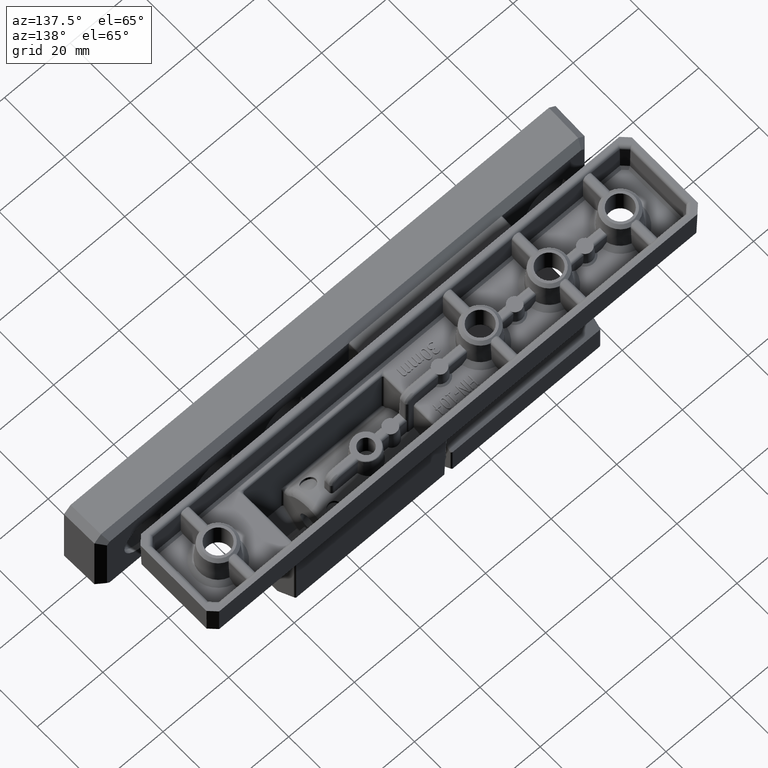
[diagram: clean part render]
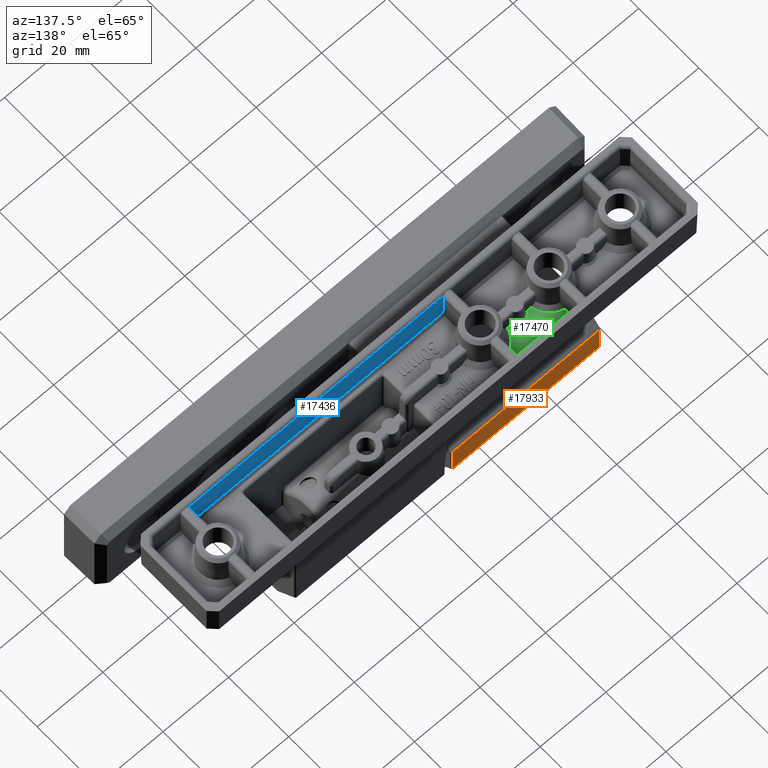
[diagram: same view with three faces highlighted in distinct colors, each labeled with its STEP entity id]
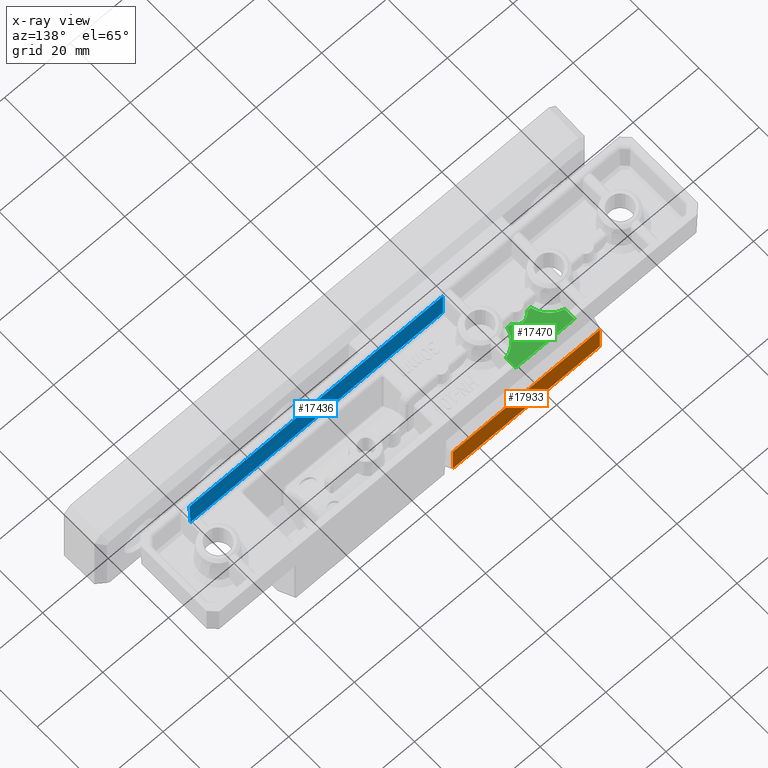
[diagram: x-ray of the same camera — body ghosted, the three highlighted faces saturated]
A machine part, auxiliary view with three faces highlighted in distinct colors.
The next image is the same camera in x-ray (body ghosted, the three faces saturated) — at least one of them is partly hidden behind the body in this view.
Their STEP definitions:

[orange] entity #17933 — the highlighted planar face has unit normal (0, 1, -0).
#526=ELLIPSE('',#19028,0.707160639333755,0.5);
#527=ELLIPSE('',#19029,0.707160639333737,0.5);
#528=ELLIPSE('',#19030,0.707160639333737,0.5);
#529=ELLIPSE('',#19031,0.707160639333755,0.5);
#1750=LINE('',#31753,#3148);
#1751=LINE('',#31757,#3149);
#1752=LINE('',#31761,#3150);
#1753=LINE('',#31764,#3151);
#3148=VECTOR('',#22294,8.79998151968334);
#3149=VECTOR('',#22297,44.6427009165423);
#3150=VECTOR('',#22300,8.79998151968334);
#3151=VECTOR('',#22303,44.6427009165423);
#4256=PLANE('',#19027);
#5375=FACE_OUTER_BOUND('',#6389,.T.);
#6389=EDGE_LOOP('',(#14968,#14969,#14970,#14971,#14972,#14973,#14974,#14975));
#8222=VERTEX_POINT('',#31749);
#8223=VERTEX_POINT('',#31750);
#8224=VERTEX_POINT('',#31752);
#8225=VERTEX_POINT('',#31754);
#8226=VERTEX_POINT('',#31756);
#8227=VERTEX_POINT('',#31758);
#8228=VERTEX_POINT('',#31760);
#8229=VERTEX_POINT('',#31762);
#10555=EDGE_CURVE('',#8222,#8223,#526,.T.);
#10556=EDGE_CURVE('',#8222,#8224,#1750,.T.);
#10557=EDGE_CURVE('',#8224,#8225,#527,.T.);
#10558=EDGE_CURVE('',#8225,#8226,#1751,.T.);
#10559=EDGE_CURVE('',#8226,#8227,#528,.T.);
#10560=EDGE_CURVE('',#8227,#8228,#1752,.T.);
#10561=EDGE_CURVE('',#8229,#8228,#529,.T.);
#10562=EDGE_CURVE('',#8223,#8229,#1753,.T.);
#14968=ORIENTED_EDGE('',*,*,#10555,.F.);
#14969=ORIENTED_EDGE('',*,*,#10556,.T.);
#14970=ORIENTED_EDGE('',*,*,#10557,.T.);
#14971=ORIENTED_EDGE('',*,*,#10558,.T.);
#14972=ORIENTED_EDGE('',*,*,#10559,.T.);
#14973=ORIENTED_EDGE('',*,*,#10560,.T.);
#14974=ORIENTED_EDGE('',*,*,#10561,.F.);
#14975=ORIENTED_EDGE('',*,*,#10562,.F.);
#17933=ADVANCED_FACE('',(#5375),#4256,.T.);
#19027=AXIS2_PLACEMENT_3D('',#31748,#22290,#22291);
#19028=AXIS2_PLACEMENT_3D('',#31751,#22292,#22293);
#19029=AXIS2_PLACEMENT_3D('',#31755,#22295,#22296);
#19030=AXIS2_PLACEMENT_3D('',#31759,#22298,#22299);
#19031=AXIS2_PLACEMENT_3D('',#31763,#22301,#22302);
#22290=DIRECTION('center_axis',(0.,1.26161707343768E-14,-1.));
#22291=DIRECTION('ref_axis',(0.,1.,1.4210854715202E-14));
#22292=DIRECTION('center_axis',(0.,-1.26161707343768E-14,1.));
#22293=DIRECTION('ref_axis',(0.0174524064372834,0.999847695156391,1.26142492304662E-14));
#22294=DIRECTION('',(-2.20216079314026E-16,-1.,-1.26161707343768E-14));
#22295=DIRECTION('center_axis',(0.,1.26161707343768E-14,-1.));
#22296=DIRECTION('ref_axis',(0.0174524064372838,-0.999847695156391,-1.26142492304662E-14));
#22297=DIRECTION('',(-1.,0.,0.));
#22298=DIRECTION('center_axis',(0.,1.26161707343768E-14,-1.));
#22299=DIRECTION('ref_axis',(-0.0174524064372838,-0.999847695156391,-1.26142492304662E-14));
#22300=DIRECTION('',(-2.20216079314026E-16,1.,1.26161707343768E-14));
#22301=DIRECTION('center_axis',(0.,-1.26161707343768E-14,1.));
#22302=DIRECTION('ref_axis',(-0.0174524064372834,0.999847695156391,1.26142492304662E-14));
#22303=DIRECTION('',(-1.,0.,0.));
#31748=CARTESIAN_POINT('Origin',(-26.7659768757282,41.400000000001,-45.4000000000001));
#31749=CARTESIAN_POINT('',(-26.176093307825,41.3999907598427,-45.4000000000001));
#31750=CARTESIAN_POINT('',(-26.1786495417292,41.400000000001,-45.4000000000001));
#31751=CARTESIAN_POINT('Origin',(-26.1848208391176,40.6928932188144,-45.4000000000001));
#31752=CARTESIAN_POINT('',(-26.176093307825,32.6000092401594,-45.4000000000002));
#31753=CARTESIAN_POINT('',(-26.1760933066535,32.600000000001,-45.4000000000002));
#31754=CARTESIAN_POINT('',(-26.1786495417292,32.600000000001,-45.4000000000002));
#31755=CARTESIAN_POINT('Origin',(-26.1848208391176,33.3071067811877,-45.4000000000002));
#31756=CARTESIAN_POINT('',(-70.8213504582715,32.600000000001,-45.4000000000002));
#31757=CARTESIAN_POINT('',(-26.7659768757282,32.600000000001,-45.4000000000002));
#31758=CARTESIAN_POINT('',(-70.8239066921757,32.6000092401594,-45.4000000000002));
#31759=CARTESIAN_POINT('Origin',(-70.8151791608831,33.3071067811876,-45.4000000000002));
#31760=CARTESIAN_POINT('',(-70.8239066921757,41.3999907598427,-45.4000000000001));
#31761=CARTESIAN_POINT('',(-70.8239066933472,41.400000000001,-45.4000000000001));
#31762=CARTESIAN_POINT('',(-70.8213504582715,41.400000000001,-45.4000000000001));
#31763=CARTESIAN_POINT('Origin',(-70.8151791608831,40.6928932188144,-45.4000000000001));
#31764=CARTESIAN_POINT('',(-26.7659768757282,41.400000000001,-45.4000000000001));

[blue] entity #17436 — the highlighted planar face has unit normal (0, 0.9998, 0.0209).
#403=ELLIPSE('',#18362,0.800175491708355,0.8);
#404=ELLIPSE('',#18367,1.00021936463544,1.);
#1011=LINE('',#25703,#2409);
#1015=LINE('',#25714,#2413);
#1016=LINE('',#25717,#2414);
#1017=LINE('',#25720,#2415);
#2409=VECTOR('',#20225,7.9203804557096);
#2413=VECTOR('',#20233,76.9355155263355);
#2414=VECTOR('',#20236,7.7244830408611);
#2415=VECTOR('',#20239,77.4762983273035);
#4015=PLANE('',#18366);
#4878=FACE_OUTER_BOUND('',#5844,.T.);
#5844=EDGE_LOOP('',(#12289,#12290,#12291,#12292,#12293,#12294));
#7335=VERTEX_POINT('',#25683);
#7336=VERTEX_POINT('',#25694);
#7337=VERTEX_POINT('',#25701);
#7339=VERTEX_POINT('',#25712);
#7340=VERTEX_POINT('',#25716);
#7341=VERTEX_POINT('',#25718);
#9213=EDGE_CURVE('',#7335,#7336,#403,.T.);
#9216=EDGE_CURVE('',#7337,#7336,#1011,.T.);
#9221=EDGE_CURVE('',#7337,#7339,#1015,.T.);
#9222=EDGE_CURVE('',#7339,#7340,#1016,.T.);
#9223=EDGE_CURVE('',#7340,#7341,#404,.T.);
#9224=EDGE_CURVE('',#7341,#7335,#1017,.T.);
#12289=ORIENTED_EDGE('',*,*,#9221,.T.);
#12290=ORIENTED_EDGE('',*,*,#9222,.T.);
#12291=ORIENTED_EDGE('',*,*,#9223,.T.);
#12292=ORIENTED_EDGE('',*,*,#9224,.T.);
#12293=ORIENTED_EDGE('',*,*,#9213,.T.);
#12294=ORIENTED_EDGE('',*,*,#9216,.F.);
#17436=ADVANCED_FACE('',(#4878),#4015,.T.);
#18362=AXIS2_PLACEMENT_3D('',#25696,#20220,#20221);
#18366=AXIS2_PLACEMENT_3D('',#25715,#20234,#20235);
#18367=AXIS2_PLACEMENT_3D('',#25719,#20237,#20238);
#20220=DIRECTION('center_axis',(-8.03838760406101E-16,-0.999780683474846,
-0.020942419883357));
#20221=DIRECTION('ref_axis',(-3.83748616329223E-14,0.020942419883357,-0.999780683474846));
#20225=DIRECTION('',(0.0209378288783664,-0.0209378288783664,0.99956151118564));
#20233=DIRECTION('',(-1.,8.04015094202733E-16,0.));
#20234=DIRECTION('center_axis',(8.03838760406101E-16,0.999780683474846,
0.020942419883357));
#20235=DIRECTION('ref_axis',(0.,-0.0209424198833581,0.999780683474846));
#20236=DIRECTION('',(-0.0209378288783667,-0.0209378288783663,0.99956151118564));
#20237=DIRECTION('center_axis',(-8.03838760406103E-16,-0.999780683474846,
-0.020942419883357));
#20238=DIRECTION('ref_axis',(-8.20560497147079E-13,-0.020942419883357,0.999780683474846));
#20239=DIRECTION('',(1.,-8.04015094202733E-16,-9.05713903708612E-37));
#25683=CARTESIAN_POINT('',(-12.8493822034255,-23.9794916672508,-0.979057580116643));
#25694=CARTESIAN_POINT('',(-12.9164066661992,-23.9731198268458,-1.28324606409331));
#25696=CARTESIAN_POINT('Origin',(-12.1165821194194,-23.9727688819173,-1.3));
#25701=CARTESIAN_POINT('',(-13.0822422368324,-23.8072842562126,-9.20015352156761));
#25703=CARTESIAN_POINT('',(-12.9158346452423,-23.9736918478027,-1.25593806881545));
#25712=CARTESIAN_POINT('',(-90.0177577631679,-23.8072842562125,-9.20015352156761));
#25714=CARTESIAN_POINT('',(-90.0030980692496,-23.8072842562125,-9.20015352156761));
#25715=CARTESIAN_POINT('Origin',(-72.9000000000002,-23.9999999999998,0.));
#25716=CARTESIAN_POINT('',(-90.1794916672513,-23.9690181602959,-1.47905758011664));
#25717=CARTESIAN_POINT('',(-90.2028847221146,-23.9924112151592,-0.362284804569769));
#25718=CARTESIAN_POINT('',(-90.325680530729,-23.9794916672508,-0.97905758011649));
#25719=CARTESIAN_POINT('Origin',(-91.1792723507262,-23.9685794791353,-1.5));
#25720=CARTESIAN_POINT('',(-72.9000000000002,-23.9794916672508,-0.979057580116643));

[green] entity #17470 — the highlighted planar face has unit normal (0, 0, -1).
#1065=LINE('',#26131,#2463);
#1075=LINE('',#26234,#2473);
#1087=LINE('',#26267,#2485);
#1089=LINE('',#26279,#2487);
#1090=LINE('',#26281,#2488);
#2463=VECTOR('',#20369,1.19163834820601);
#2473=VECTOR('',#20401,1.19163834820559);
#2485=VECTOR('',#20423,3.27677413902005);
#2487=VECTOR('',#20427,18.006196138499);
#2488=VECTOR('',#20428,3.27677413902003);
#4040=PLANE('',#18425);
#4912=FACE_OUTER_BOUND('',#5885,.T.);
#5885=EDGE_LOOP('',(#12513,#12514,#12515,#12516,#12517,#12518,#12519,#12520));
#6689=CIRCLE('',#18426,6.97829007585205);
#6690=CIRCLE('',#18427,2.8426413785232);
#6691=CIRCLE('',#18428,6.97829007585205);
#7428=VERTEX_POINT('',#26126);
#7429=VERTEX_POINT('',#26130);
#7451=VERTEX_POINT('',#26229);
#7452=VERTEX_POINT('',#26233);
#7464=VERTEX_POINT('',#26264);
#7465=VERTEX_POINT('',#26266);
#7468=VERTEX_POINT('',#26278);
#7469=VERTEX_POINT('',#26280);
#9328=EDGE_CURVE('',#7429,#7428,#1065,.T.);
#9356=EDGE_CURVE('',#7452,#7451,#1075,.T.);
#9370=EDGE_CURVE('',#7464,#7465,#1087,.T.);
#9374=EDGE_CURVE('',#7464,#7468,#1089,.T.);
#9375=EDGE_CURVE('',#7468,#7469,#1090,.T.);
#9376=EDGE_CURVE('',#7469,#7429,#6689,.T.);
#9377=EDGE_CURVE('',#7428,#7452,#6690,.T.);
#9378=EDGE_CURVE('',#7451,#7465,#6691,.T.);
#12513=ORIENTED_EDGE('',*,*,#9370,.F.);
#12514=ORIENTED_EDGE('',*,*,#9374,.T.);
#12515=ORIENTED_EDGE('',*,*,#9375,.T.);
#12516=ORIENTED_EDGE('',*,*,#9376,.T.);
#12517=ORIENTED_EDGE('',*,*,#9328,.T.);
#12518=ORIENTED_EDGE('',*,*,#9377,.T.);
#12519=ORIENTED_EDGE('',*,*,#9356,.T.);
#12520=ORIENTED_EDGE('',*,*,#9378,.T.);
#17470=ADVANCED_FACE('',(#4912),#4040,.F.);
#18425=AXIS2_PLACEMENT_3D('',#26277,#20425,#20426);
#18426=AXIS2_PLACEMENT_3D('',#26282,#20429,#20430);
#18427=AXIS2_PLACEMENT_3D('',#26283,#20431,#20432);
#18428=AXIS2_PLACEMENT_3D('',#26284,#20433,#20434);
#20369=DIRECTION('',(1.,-1.02379467467607E-14,0.));
#20401=DIRECTION('',(1.,-1.02379467467611E-14,0.));
#20423=DIRECTION('',(0.,-1.,0.));
#20425=DIRECTION('center_axis',(0.,0.,-1.));
#20426=DIRECTION('ref_axis',(-1.,0.,0.));
#20427=DIRECTION('',(-1.,7.97924070761804E-16,0.));
#20428=DIRECTION('',(2.02367080532617E-14,-1.,0.));
#20429=DIRECTION('center_axis',(0.,0.,-1.));
#20430=DIRECTION('ref_axis',(-1.,0.,0.));
#20431=DIRECTION('center_axis',(0.,0.,-1.));
#20432=DIRECTION('ref_axis',(-1.,0.,0.));
#20433=DIRECTION('center_axis',(0.,0.,-1.));
#20434=DIRECTION('ref_axis',(-1.,0.,0.));
#26126=CARTESIAN_POINT('',(-104.472490648012,-11.5973596318425,-9.9));
#26130=CARTESIAN_POINT('',(-105.664128996218,-11.5973596318425,-9.9));
#26131=CARTESIAN_POINT('',(-51.5500000000002,-11.5973596318431,-9.9));
#26229=CARTESIAN_POINT('',(-98.3358710037825,-11.5973596318426,-9.9));
#26233=CARTESIAN_POINT('',(-99.5275093519881,-11.5973596318426,-9.9));
#26234=CARTESIAN_POINT('',(-51.5500000000002,-11.5973596318431,-9.9));
#26264=CARTESIAN_POINT('',(-92.996901930751,-2.90737543770544,-9.9));
#26266=CARTESIAN_POINT('',(-92.996901930751,-6.18414957672549,-9.9));
#26267=CARTESIAN_POINT('',(-92.996901930751,-20.8903003372035,-9.9));
#26277=CARTESIAN_POINT('Origin',(-145.8,-1.99999999999977,-9.9));
#26278=CARTESIAN_POINT('',(-111.00309806925,-2.90737543770544,-9.9));
#26279=CARTESIAN_POINT('',(-111.00309806925,-2.90737543770543,-9.9));
#26280=CARTESIAN_POINT('',(-111.00309806925,-6.18414957672547,-9.9));
#26281=CARTESIAN_POINT('',(-111.003098069249,-20.8903003372039,-9.9));
#26282=CARTESIAN_POINT('Origin',(-112.5,-12.9999999999999,-9.9));
#26283=CARTESIAN_POINT('Origin',(-102.,-13.0000000000001,-9.9));
#26284=CARTESIAN_POINT('Origin',(-91.5000000000002,-12.9999999999999,-9.9));